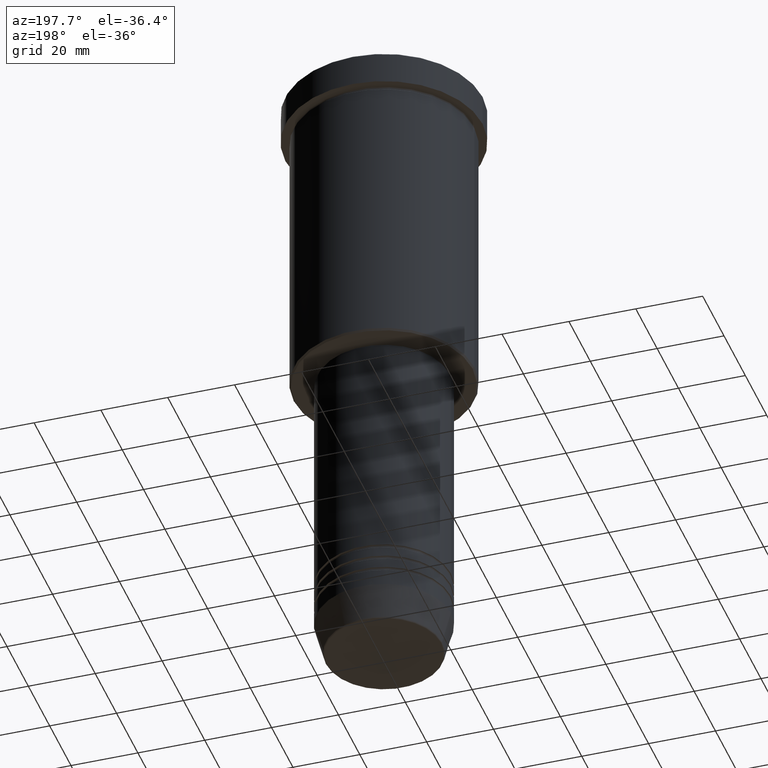
[diagram: clean part render]
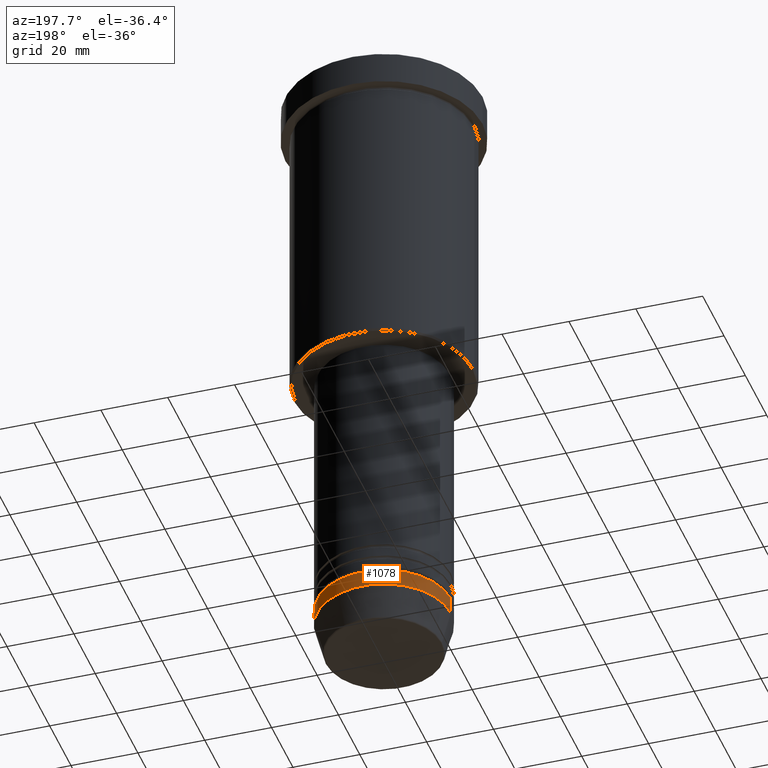
[diagram: same view with one face highlighted and labeled with its STEP entity id]
A machine part, auxiliary view. The second image highlights one B-rep face of the part: STEP entity #1078.
In plain terms, the highlighted cylindrical surface (partial cylindrical patch) has radius 20 mm, axis along (-0, -0, 1).
Its self-contained STEP definition (entity closure, byte-faithful):
#29 = LINE ( 'NONE', #413, #1145 ) ;
#47 = CYLINDRICAL_SURFACE ( 'NONE', #57, 20.00000000000000000 ) ;
#51 = EDGE_CURVE ( 'NONE', #753, #377, #588, .T. ) ;
#57 = AXIS2_PLACEMENT_3D ( 'NONE', #870, #402, #255 ) ;
#68 = CARTESIAN_POINT ( 'NONE',  ( 20.00000000000000000, 0.000000000000000000, -181.0000000000000000 ) ) ;
#70 = AXIS2_PLACEMENT_3D ( 'NONE', #516, #134, #1156 ) ;
#126 = EDGE_CURVE ( 'NONE', #657, #753, #29, .T. ) ;
#134 = DIRECTION ( 'NONE',  ( -0.000000000000000000, -0.000000000000000000, 1.000000000000000000 ) ) ;
#142 = ORIENTED_EDGE ( 'NONE', *, *, #384, .T. ) ;
#255 = DIRECTION ( 'NONE',  ( 1.000000000000000000, 0.000000000000000000, 0.000000000000000000 ) ) ;
#341 = LINE ( 'NONE', #1174, #687 ) ;
#358 = ORIENTED_EDGE ( 'NONE', *, *, #51, .F. ) ;
#377 = VERTEX_POINT ( 'NONE', #555 ) ;
#378 = VERTEX_POINT ( 'NONE', #566 ) ;
#384 = EDGE_CURVE ( 'NONE', #657, #378, #914, .T. ) ;
#402 = DIRECTION ( 'NONE',  ( -0.000000000000000000, -0.000000000000000000, 1.000000000000000000 ) ) ;
#413 = CARTESIAN_POINT ( 'NONE',  ( 20.00000000000000000, 0.000000000000000000, 0.000000000000000000 ) ) ;
#436 = DIRECTION ( 'NONE',  ( -0.000000000000000000, -0.000000000000000000, 1.000000000000000000 ) ) ;
#471 = AXIS2_PLACEMENT_3D ( 'NONE', #1116, #857, #572 ) ;
#516 = CARTESIAN_POINT ( 'NONE',  ( 0.000000000000000000, 0.000000000000000000, -176.0000000000000284 ) ) ;
#555 = CARTESIAN_POINT ( 'NONE',  ( -20.00000000000000000, 2.449293598294706513E-15, -176.0000000000000284 ) ) ;
#561 = ORIENTED_EDGE ( 'NONE', *, *, #723, .T. ) ;
#566 = CARTESIAN_POINT ( 'NONE',  ( -20.00000000000000000, 2.449293598294706513E-15, -181.0000000000000000 ) ) ;
#572 = DIRECTION ( 'NONE',  ( 1.000000000000000000, 0.000000000000000000, 0.000000000000000000 ) ) ;
#588 = CIRCLE ( 'NONE', #70, 20.00000000000000000 ) ;
#657 = VERTEX_POINT ( 'NONE', #68 ) ;
#687 = VECTOR ( 'NONE', #436, 1000.000000000000000 ) ;
#714 = EDGE_LOOP ( 'NONE', ( #142, #561, #358, #806 ) ) ;
#723 = EDGE_CURVE ( 'NONE', #378, #377, #341, .T. ) ;
#753 = VERTEX_POINT ( 'NONE', #1008 ) ;
#791 = DIRECTION ( 'NONE',  ( -0.000000000000000000, -0.000000000000000000, 1.000000000000000000 ) ) ;
#806 = ORIENTED_EDGE ( 'NONE', *, *, #126, .F. ) ;
#857 = DIRECTION ( 'NONE',  ( -0.000000000000000000, -0.000000000000000000, 1.000000000000000000 ) ) ;
#870 = CARTESIAN_POINT ( 'NONE',  ( 0.000000000000000000, 0.000000000000000000, 0.000000000000000000 ) ) ;
#914 = CIRCLE ( 'NONE', #471, 20.00000000000000000 ) ;
#1008 = CARTESIAN_POINT ( 'NONE',  ( 20.00000000000000000, 0.000000000000000000, -176.0000000000000284 ) ) ;
#1051 = FACE_OUTER_BOUND ( 'NONE', #714, .T. ) ;
#1078 = ADVANCED_FACE ( 'NONE', ( #1051 ), #47, .T. ) ;
#1116 = CARTESIAN_POINT ( 'NONE',  ( 0.000000000000000000, 0.000000000000000000, -181.0000000000000000 ) ) ;
#1145 = VECTOR ( 'NONE', #791, 1000.000000000000000 ) ;
#1156 = DIRECTION ( 'NONE',  ( 1.000000000000000000, 0.000000000000000000, 0.000000000000000000 ) ) ;
#1174 = CARTESIAN_POINT ( 'NONE',  ( -20.00000000000000000, 2.449293598294706513E-15, 0.000000000000000000 ) ) ;